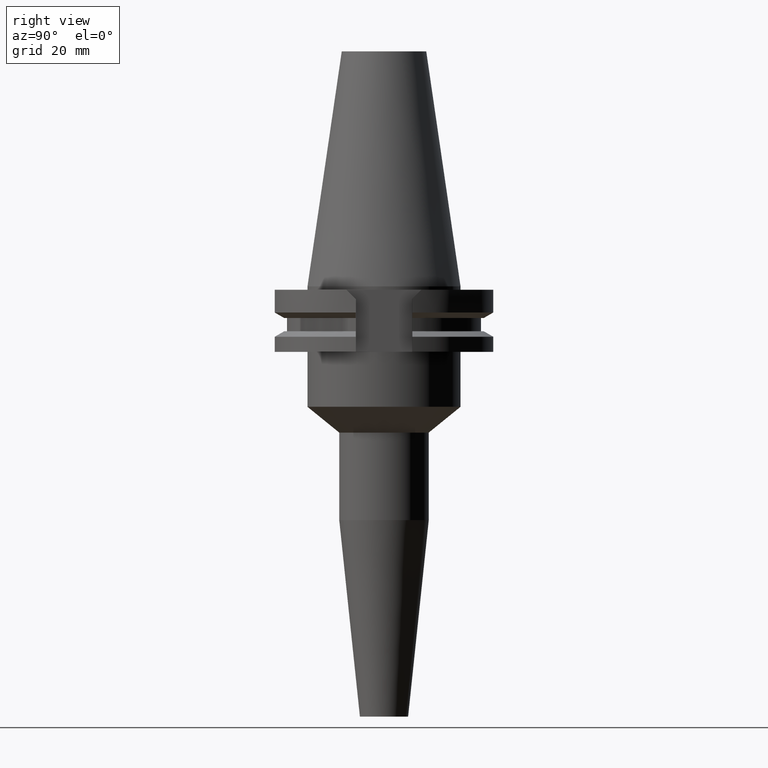
[diagram: clean part render]
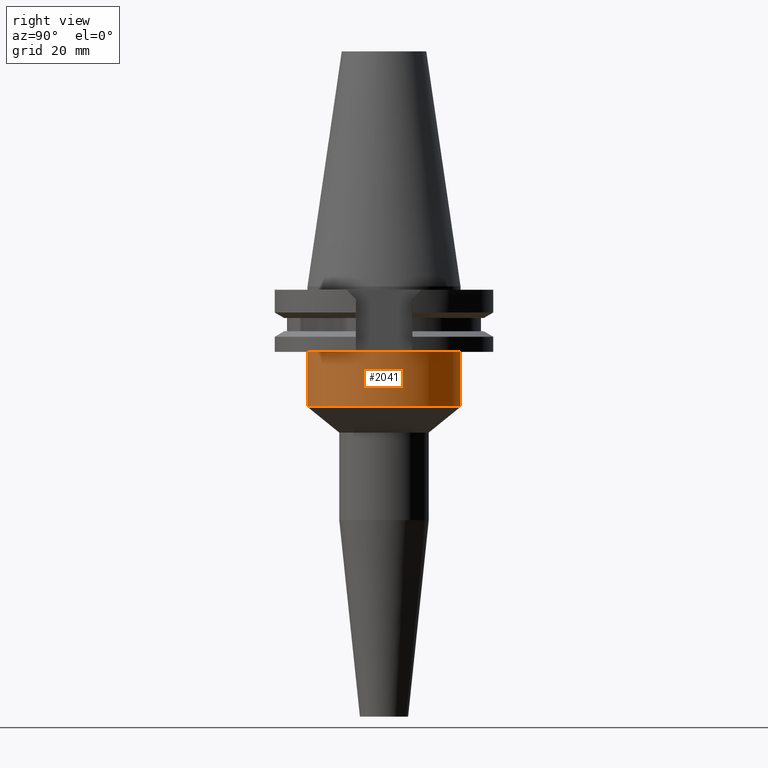
[diagram: same view with one face highlighted and labeled with its STEP entity id]
A machine part, right view. The second image highlights one B-rep face of the part: STEP entity #2041.
In plain terms, the highlighted cylindrical surface (partial cylindrical patch) has radius 22.225 mm, axis along (0, 0, -1).
Its self-contained STEP definition (entity closure, byte-faithful):
#259=CARTESIAN_POINT('',(0.E0,2.178799736533E-14,-1.905E1));
#260=DIRECTION('',(0.E0,0.E0,-1.E0));
#261=DIRECTION('',(0.E0,1.E0,0.E0));
#262=AXIS2_PLACEMENT_3D('',#259,#260,#261);
#848=DIRECTION('',(0.E0,6.437205349050E-14,-1.E0));
#849=VECTOR('',#848,1.595E1);
#850=CARTESIAN_POINT('',(0.E0,-2.2225E1,-1.905E1));
#851=LINE('',#850,#849);
#855=DIRECTION('',(0.E0,-6.504027549905E-14,-1.E0));
#856=VECTOR('',#855,1.595E1);
#857=CARTESIAN_POINT('',(0.E0,2.2225E1,-1.905E1));
#858=LINE('',#857,#856);
#877=CARTESIAN_POINT('',(0.E0,0.E0,-3.5E1));
#878=DIRECTION('',(0.E0,0.E0,1.E0));
#879=DIRECTION('',(0.E0,-1.E0,0.E0));
#880=AXIS2_PLACEMENT_3D('',#877,#878,#879);
#1272=CARTESIAN_POINT('',(0.E0,2.2225E1,-3.5E1));
#1273=VERTEX_POINT('',#1272);
#1274=CARTESIAN_POINT('',(0.E0,-2.2225E1,-3.5E1));
#1275=VERTEX_POINT('',#1274);
#1276=CARTESIAN_POINT('',(0.E0,2.2225E1,-1.905E1));
#1277=VERTEX_POINT('',#1276);
#1278=CARTESIAN_POINT('',(0.E0,-2.2225E1,-1.905E1));
#1279=VERTEX_POINT('',#1278);
#2029=CARTESIAN_POINT('',(0.E0,2.178799736533E-14,7.79125E1));
#2030=DIRECTION('',(0.E0,0.E0,-1.E0));
#2031=DIRECTION('',(0.E0,-1.E0,0.E0));
#2032=AXIS2_PLACEMENT_3D('',#2029,#2030,#2031);
#2033=CYLINDRICAL_SURFACE('',#2032,2.2225E1);
#2034=ORIENTED_EDGE('',*,*,#2019,.T.);
#2036=ORIENTED_EDGE('',*,*,#2035,.F.);
#2037=ORIENTED_EDGE('',*,*,#2022,.F.);
#2038=ORIENTED_EDGE('',*,*,#1567,.F.);
#2039=EDGE_LOOP('',(#2034,#2036,#2037,#2038));
#2040=FACE_OUTER_BOUND('',#2039,.F.);
#263=CIRCLE('',#262,2.2225E1);
#881=CIRCLE('',#880,2.2225E1);
#1567=EDGE_CURVE('',#1277,#1279,#263,.T.);
#2019=EDGE_CURVE('',#1277,#1273,#858,.T.);
#2022=EDGE_CURVE('',#1279,#1275,#851,.T.);
#2035=EDGE_CURVE('',#1275,#1273,#881,.T.);
#2041=ADVANCED_FACE('',(#2040),#2033,.T.);